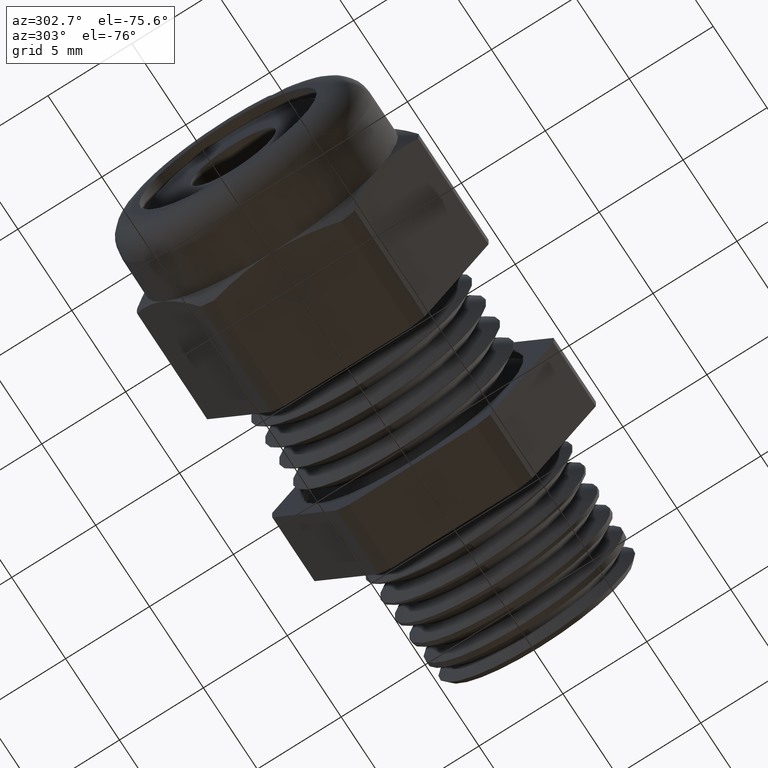
[diagram: clean part render]
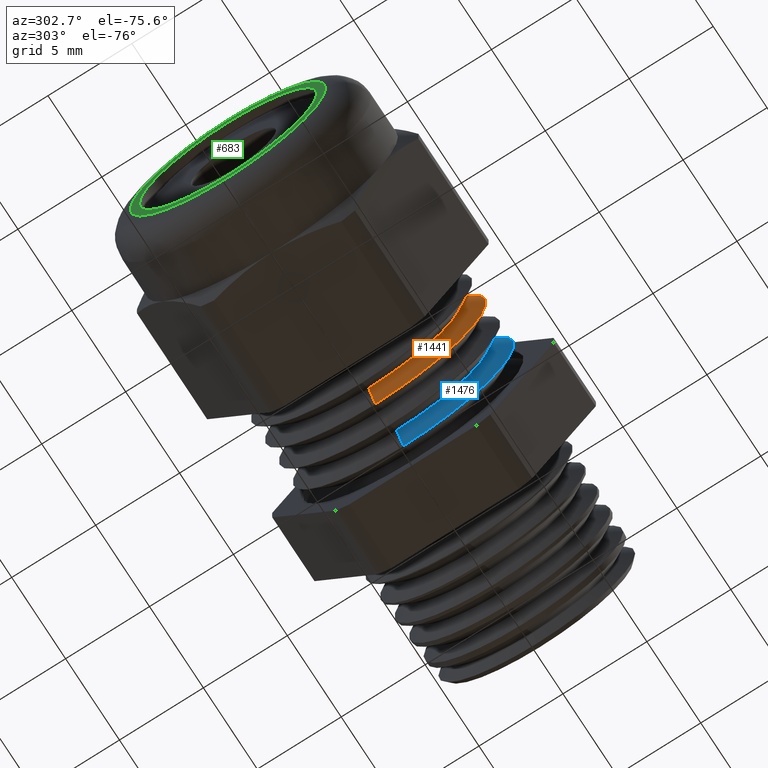
[diagram: same view with three faces highlighted in distinct colors, each labeled with its STEP entity id]
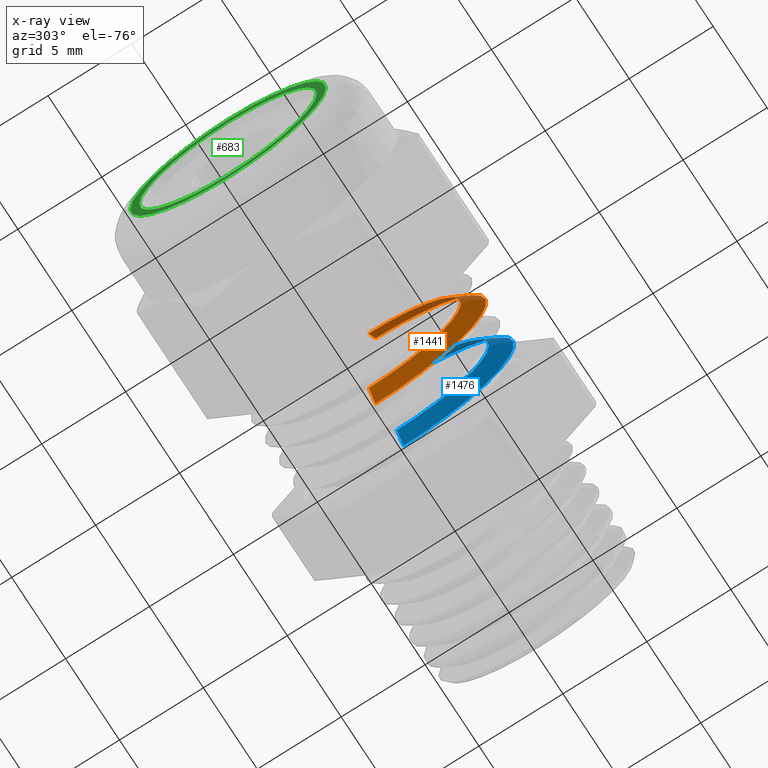
[diagram: x-ray of the same camera — body ghosted, the three highlighted faces saturated]
A machine part, auxiliary view with three faces highlighted in distinct colors.
The next image is the same camera in x-ray (body ghosted, the three faces saturated) — at least one of them is partly hidden behind the body in this view.
Their STEP definitions:

[orange] entity #1441 — the highlighted conical surface has half-angle 60 deg.
#547 = EDGE_CURVE ( 'NONE', #901, #899, #1839, .T. ) ;
#899 = VERTEX_POINT ( 'NONE', #2491 ) ;
#901 = VERTEX_POINT ( 'NONE', #2489 ) ;
#909 = EDGE_CURVE ( 'NONE', #982, #901, #2537, .T. ) ;
#982 = VERTEX_POINT ( 'NONE', #2641 ) ;
#984 = VERTEX_POINT ( 'NONE', #2639 ) ;
#989 = EDGE_CURVE ( 'NONE', #984, #899, #2638, .T. ) ;
#1441 = ADVANCED_FACE ( 'NONE', ( #3436 ), #3435, .T. ) ;
#1442 = EDGE_LOOP ( 'NONE', ( #1443, #1449, #1496, #1497 ) ) ;
#1443 = ORIENTED_EDGE ( 'NONE', *, *, #909, .F. ) ;
#1449 = ORIENTED_EDGE ( 'NONE', *, *, #1450, .T. ) ;
#1450 = EDGE_CURVE ( 'NONE', #982, #984, #3429, .T. ) ;
#1496 = ORIENTED_EDGE ( 'NONE', *, *, #989, .T. ) ;
#1497 = ORIENTED_EDGE ( 'NONE', *, *, #547, .F. ) ;
#1835 = DIRECTION ( 'NONE',  ( 0.0000000000000000000, 0.0000000000000000000, -1.000000000000000000 ) ) ;
#1836 = DIRECTION ( 'NONE',  ( 1.000000000000000000, 0.0000000000000000000, 0.0000000000000000000 ) ) ;
#1837 = CARTESIAN_POINT ( 'NONE',  ( -0.2910833566458394500, 0.0000000000000000000, 0.0000000000000000000 ) ) ;
#1838 = AXIS2_PLACEMENT_3D ( 'NONE', #1837, #1836, #1835 ) ;
#1839 = CIRCLE ( 'NONE', #1838, 0.2596999999999999900 ) ;
#2489 = CARTESIAN_POINT ( 'NONE',  ( -0.2910833566458394500, 0.0000000000000000000, 0.2596999999999999900 ) ) ;
#2491 = CARTESIAN_POINT ( 'NONE',  ( -0.2910833566458394500, 3.180407737385675900E-017, -0.2596999999999999900 ) ) ;
#2534 = DIRECTION ( 'NONE',  ( 0.4999999999999960000, 1.060575238724909600E-016, 0.8660254037844409300 ) ) ;
#2535 = VECTOR ( 'NONE', #2534, 39.37007874015748100 ) ;
#2536 = CARTESIAN_POINT ( 'NONE',  ( -0.3160833449895865100, 2.650120365269882500E-017, 0.2163987499999999500 ) ) ;
#2537 = LINE ( 'NONE', #2536, #2535 ) ;
#2638 = LINE ( 'NONE', #2695, #2694 ) ;
#2639 = CARTESIAN_POINT ( 'NONE',  ( -0.3160833449895865100, 0.0000000000000000000, -0.2163987499999999500 ) ) ;
#2641 = CARTESIAN_POINT ( 'NONE',  ( -0.3160833449895865100, 2.915264051327779200E-017, 0.2163987499999999500 ) ) ;
#2693 = DIRECTION ( 'NONE',  ( 0.4999999999999960000, 0.0000000000000000000, -0.8660254037844409300 ) ) ;
#2694 = VECTOR ( 'NONE', #2693, 39.37007874015748100 ) ;
#2695 = CARTESIAN_POINT ( 'NONE',  ( -0.3160833449895865100, 0.0000000000000000000, -0.2163987499999999500 ) ) ;
#3426 = DIRECTION ( 'NONE',  ( 0.0000000000000000000, 0.0000000000000000000, -1.000000000000000000 ) ) ;
#3427 = DIRECTION ( 'NONE',  ( 1.000000000000000000, 0.0000000000000000000, 0.0000000000000000000 ) ) ;
#3428 = AXIS2_PLACEMENT_3D ( 'NONE', #3434, #3427, #3426 ) ;
#3429 = CIRCLE ( 'NONE', #3428, 0.2163987499999999500 ) ;
#3430 = DIRECTION ( 'NONE',  ( 0.0000000000000000000, 0.0000000000000000000, -1.000000000000000000 ) ) ;
#3431 = DIRECTION ( 'NONE',  ( 1.000000000000000000, 0.0000000000000000000, 0.0000000000000000000 ) ) ;
#3432 = CARTESIAN_POINT ( 'NONE',  ( -0.3160833449895865100, 0.0000000000000000000, 0.0000000000000000000 ) ) ;
#3433 = AXIS2_PLACEMENT_3D ( 'NONE', #3432, #3431, #3430 ) ;
#3434 = CARTESIAN_POINT ( 'NONE',  ( -0.3160833449895865100, 0.0000000000000000000, 0.0000000000000000000 ) ) ;
#3435 = CONICAL_SURFACE ( 'NONE', #3433, 0.2163987499999999500, 1.047197551196602300 ) ;
#3436 = FACE_OUTER_BOUND ( 'NONE', #1442, .T. ) ;

[blue] entity #1476 — the highlighted conical surface has half-angle 60 deg.
#5 = FACE_OUTER_BOUND ( 'NONE', #1479, .T. ) ;
#51 = DIRECTION ( 'NONE',  ( 0.0000000000000000000, 0.0000000000000000000, -1.000000000000000000 ) ) ;
#52 = DIRECTION ( 'NONE',  ( 1.000000000000000000, 0.0000000000000000000, 0.0000000000000000000 ) ) ;
#53 = AXIS2_PLACEMENT_3D ( 'NONE', #59, #52, #51 ) ;
#54 = CIRCLE ( 'NONE', #53, 0.2163987499999999500 ) ;
#59 = CARTESIAN_POINT ( 'NONE',  ( -0.2140833449895865000, 0.0000000000000000000, 0.0000000000000000000 ) ) ;
#61 = DIRECTION ( 'NONE',  ( 0.0000000000000000000, 0.0000000000000000000, -1.000000000000000000 ) ) ;
#62 = DIRECTION ( 'NONE',  ( 1.000000000000000000, 0.0000000000000000000, 0.0000000000000000000 ) ) ;
#63 = CARTESIAN_POINT ( 'NONE',  ( -0.2140833449895865000, 0.0000000000000000000, 0.0000000000000000000 ) ) ;
#64 = AXIS2_PLACEMENT_3D ( 'NONE', #63, #62, #61 ) ;
#66 = CONICAL_SURFACE ( 'NONE', #64, 0.2163987499999999500, 1.047197551196602300 ) ;
#270 = CARTESIAN_POINT ( 'NONE',  ( -0.2140833449895865000, 0.0000000000000000000, -0.2163987499999999500 ) ) ;
#311 = CARTESIAN_POINT ( 'NONE',  ( -0.2140833449895865000, 2.915264051327779200E-017, 0.2163987499999999500 ) ) ;
#518 = EDGE_CURVE ( 'NONE', #780, #924, #1774, .T. ) ;
#780 = VERTEX_POINT ( 'NONE', #2271 ) ;
#783 = EDGE_CURVE ( 'NONE', #1638, #780, #2269, .T. ) ;
#799 = ORIENTED_EDGE ( 'NONE', *, *, #518, .F. ) ;
#924 = VERTEX_POINT ( 'NONE', #2511 ) ;
#966 = EDGE_CURVE ( 'NONE', #1631, #924, #2667, .T. ) ;
#1476 = ADVANCED_FACE ( 'NONE', ( #5 ), #66, .T. ) ;
#1477 = ORIENTED_EDGE ( 'NONE', *, *, #783, .F. ) ;
#1479 = EDGE_LOOP ( 'NONE', ( #1477, #1487, #1483, #799 ) ) ;
#1482 = EDGE_CURVE ( 'NONE', #1638, #1631, #54, .T. ) ;
#1483 = ORIENTED_EDGE ( 'NONE', *, *, #966, .T. ) ;
#1487 = ORIENTED_EDGE ( 'NONE', *, *, #1482, .T. ) ;
#1631 = VERTEX_POINT ( 'NONE', #270 ) ;
#1638 = VERTEX_POINT ( 'NONE', #311 ) ;
#1771 = DIRECTION ( 'NONE',  ( 0.0000000000000000000, 0.0000000000000000000, -1.000000000000000000 ) ) ;
#1772 = DIRECTION ( 'NONE',  ( 1.000000000000000000, 0.0000000000000000000, 0.0000000000000000000 ) ) ;
#1773 = AXIS2_PLACEMENT_3D ( 'NONE', #1779, #1772, #1771 ) ;
#1774 = CIRCLE ( 'NONE', #1773, 0.2596999999999999900 ) ;
#1779 = CARTESIAN_POINT ( 'NONE',  ( -0.1890833566458394700, 0.0000000000000000000, 0.0000000000000000000 ) ) ;
#2261 = DIRECTION ( 'NONE',  ( 0.4999999999999960000, 1.060575238724909600E-016, 0.8660254037844409300 ) ) ;
#2262 = VECTOR ( 'NONE', #2261, 39.37007874015748100 ) ;
#2263 = CARTESIAN_POINT ( 'NONE',  ( -0.2140833449895865000, 2.650120365269882500E-017, 0.2163987499999999500 ) ) ;
#2269 = LINE ( 'NONE', #2263, #2262 ) ;
#2271 = CARTESIAN_POINT ( 'NONE',  ( -0.1890833566458394700, 0.0000000000000000000, 0.2596999999999999900 ) ) ;
#2511 = CARTESIAN_POINT ( 'NONE',  ( -0.1890833566458394700, 3.180407737385675900E-017, -0.2596999999999999900 ) ) ;
#2664 = DIRECTION ( 'NONE',  ( 0.4999999999999960000, 0.0000000000000000000, -0.8660254037844409300 ) ) ;
#2665 = VECTOR ( 'NONE', #2664, 39.37007874015748100 ) ;
#2666 = CARTESIAN_POINT ( 'NONE',  ( -0.2140833449895865000, 0.0000000000000000000, -0.2163987499999999500 ) ) ;
#2667 = LINE ( 'NONE', #2666, #2665 ) ;

[green] entity #683 — the highlighted planar face has unit normal (1, 0, 0).
#680 = ORIENTED_EDGE ( 'NONE', *, *, #965, .T. ) ;
#681 = EDGE_LOOP ( 'NONE', ( #1406, #1403 ) ) ;
#682 = EDGE_CURVE ( 'NONE', #939, #944, #2128, .T. ) ;
#683 = ADVANCED_FACE ( 'NONE', ( #2123, #2122 ), #2121, .F. ) ;
#696 = ORIENTED_EDGE ( 'NONE', *, *, #682, .T. ) ;
#811 = EDGE_CURVE ( 'NONE', #817, #818, #2334, .T. ) ;
#817 = VERTEX_POINT ( 'NONE', #2325 ) ;
#818 = VERTEX_POINT ( 'NONE', #2324 ) ;
#939 = VERTEX_POINT ( 'NONE', #2542 ) ;
#944 = VERTEX_POINT ( 'NONE', #2594 ) ;
#965 = EDGE_CURVE ( 'NONE', #944, #939, #2609, .T. ) ;
#1403 = ORIENTED_EDGE ( 'NONE', *, *, #811, .F. ) ;
#1406 = ORIENTED_EDGE ( 'NONE', *, *, #1407, .F. ) ;
#1407 = EDGE_CURVE ( 'NONE', #818, #817, #3361, .T. ) ;
#1430 = EDGE_LOOP ( 'NONE', ( #696, #680 ) ) ;
#2117 = DIRECTION ( 'NONE',  ( 0.0000000000000000000, 0.0000000000000000000, -1.000000000000000000 ) ) ;
#2118 = DIRECTION ( 'NONE',  ( 1.000000000000000000, 0.0000000000000000000, 0.0000000000000000000 ) ) ;
#2119 = CARTESIAN_POINT ( 'NONE',  ( -0.8300000000000001800, 0.2450000000000000000, 0.0000000000000000000 ) ) ;
#2120 = AXIS2_PLACEMENT_3D ( 'NONE', #2119, #2118, #2117 ) ;
#2121 = PLANE ( 'NONE',  #2120 ) ;
#2122 = FACE_BOUND ( 'NONE', #681, .T. ) ;
#2123 = FACE_OUTER_BOUND ( 'NONE', #1430, .T. ) ;
#2124 = DIRECTION ( 'NONE',  ( 0.0000000000000000000, 0.0000000000000000000, -1.000000000000000000 ) ) ;
#2125 = DIRECTION ( 'NONE',  ( -1.000000000000000000, 0.0000000000000000000, 0.0000000000000000000 ) ) ;
#2126 = CARTESIAN_POINT ( 'NONE',  ( -0.8300000000000001800, 0.0000000000000000000, 0.0000000000000000000 ) ) ;
#2127 = AXIS2_PLACEMENT_3D ( 'NONE', #2126, #2125, #2124 ) ;
#2128 = CIRCLE ( 'NONE', #2127, 0.2295999999999995500 ) ;
#2324 = CARTESIAN_POINT ( 'NONE',  ( -0.8300000000000001800, 0.0000000000000000000, 0.2082500000000000200 ) ) ;
#2325 = CARTESIAN_POINT ( 'NONE',  ( -0.8300000000000001800, 2.550326959224363300E-017, -0.2082500000000000200 ) ) ;
#2330 = DIRECTION ( 'NONE',  ( 0.0000000000000000000, 0.0000000000000000000, 1.000000000000000000 ) ) ;
#2331 = DIRECTION ( 'NONE',  ( -1.000000000000000000, 0.0000000000000000000, 0.0000000000000000000 ) ) ;
#2332 = CARTESIAN_POINT ( 'NONE',  ( -0.8300000000000001800, 0.0000000000000000000, 0.0000000000000000000 ) ) ;
#2333 = AXIS2_PLACEMENT_3D ( 'NONE', #2332, #2331, #2330 ) ;
#2334 = CIRCLE ( 'NONE', #2333, 0.2082500000000000200 ) ;
#2542 = CARTESIAN_POINT ( 'NONE',  ( -0.8300000000000001800, 0.0000000000000000000, -0.2295999999999995500 ) ) ;
#2594 = CARTESIAN_POINT ( 'NONE',  ( -0.8300000000000001800, 3.212248554163501700E-017, 0.2295999999999995500 ) ) ;
#2606 = DIRECTION ( 'NONE',  ( 0.0000000000000000000, 0.0000000000000000000, -1.000000000000000000 ) ) ;
#2607 = DIRECTION ( 'NONE',  ( -1.000000000000000000, 0.0000000000000000000, 0.0000000000000000000 ) ) ;
#2608 = AXIS2_PLACEMENT_3D ( 'NONE', #2613, #2607, #2606 ) ;
#2609 = CIRCLE ( 'NONE', #2608, 0.2295999999999995500 ) ;
#2613 = CARTESIAN_POINT ( 'NONE',  ( -0.8300000000000001800, 0.0000000000000000000, 0.0000000000000000000 ) ) ;
#3358 = DIRECTION ( 'NONE',  ( 0.0000000000000000000, 0.0000000000000000000, 1.000000000000000000 ) ) ;
#3359 = DIRECTION ( 'NONE',  ( -1.000000000000000000, 0.0000000000000000000, 0.0000000000000000000 ) ) ;
#3360 = AXIS2_PLACEMENT_3D ( 'NONE', #3366, #3359, #3358 ) ;
#3361 = CIRCLE ( 'NONE', #3360, 0.2082500000000000200 ) ;
#3366 = CARTESIAN_POINT ( 'NONE',  ( -0.8300000000000001800, 0.0000000000000000000, 0.0000000000000000000 ) ) ;